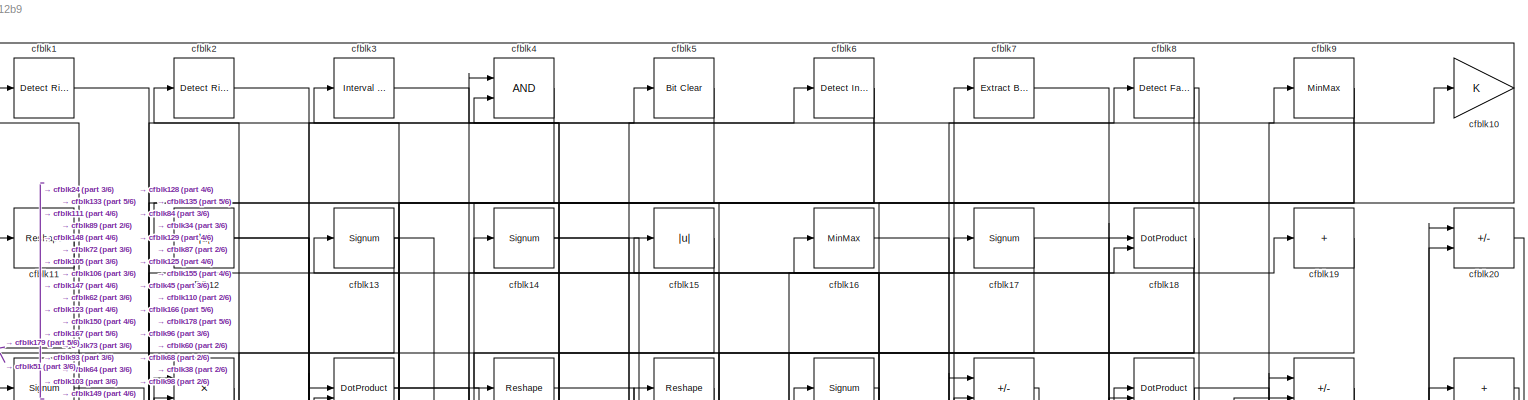
[diagram: root canvas - part 1/6, full width, top band]
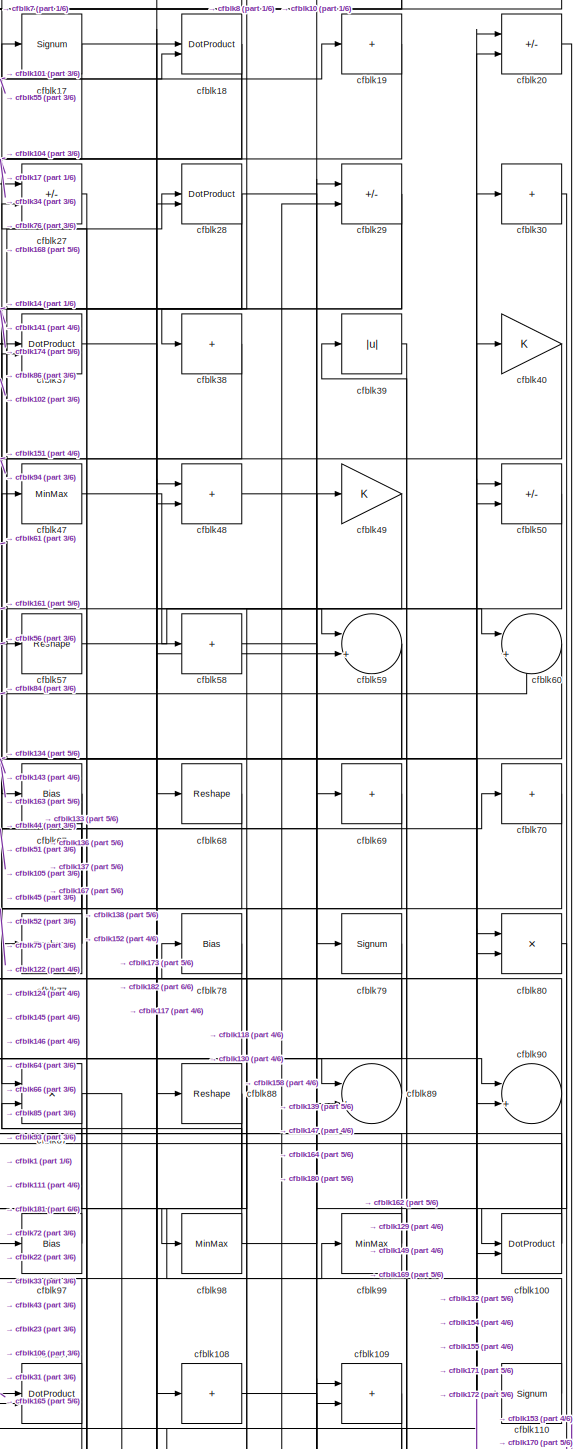
[diagram: root canvas - part 2/6, top right region]
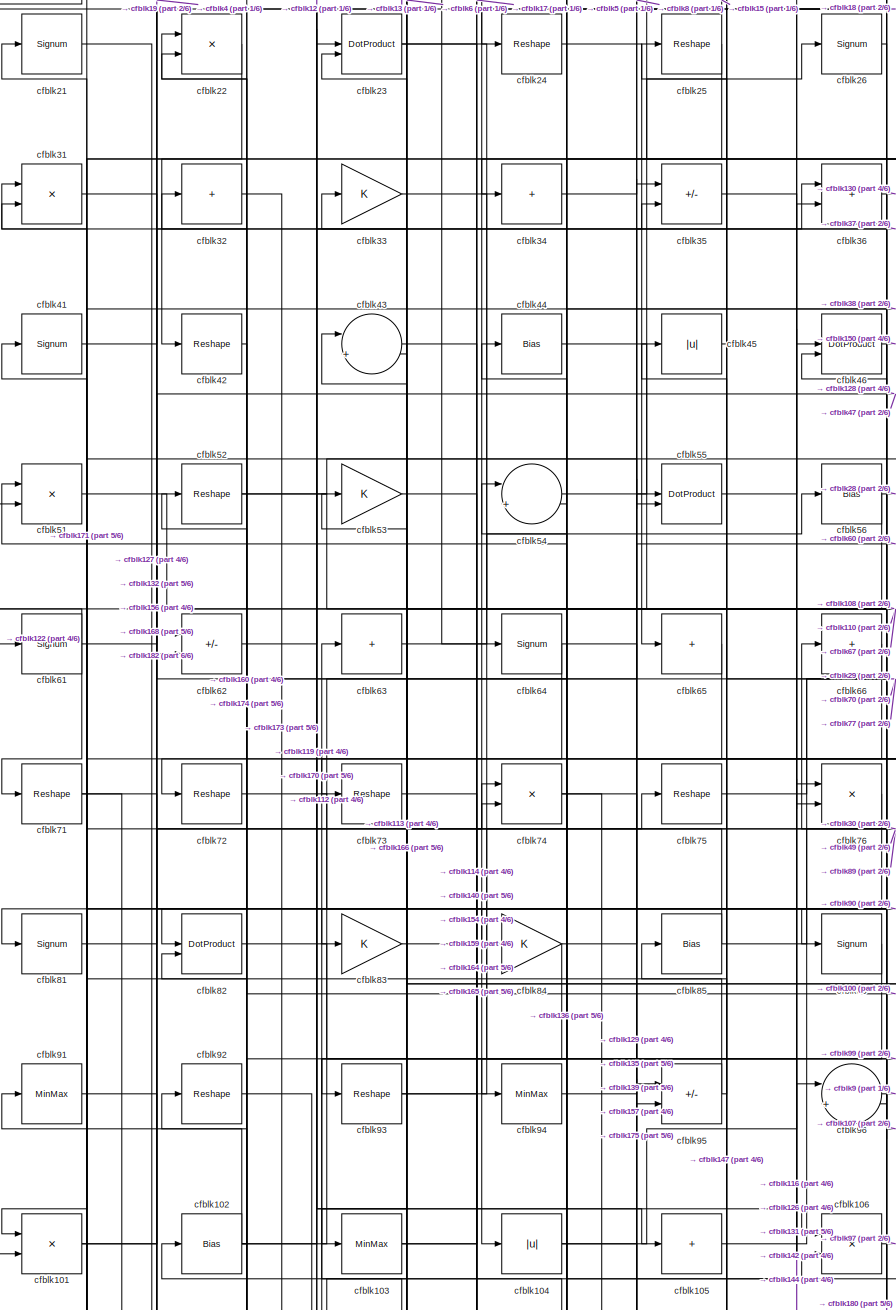
[diagram: root canvas - part 3/6, middle left region]
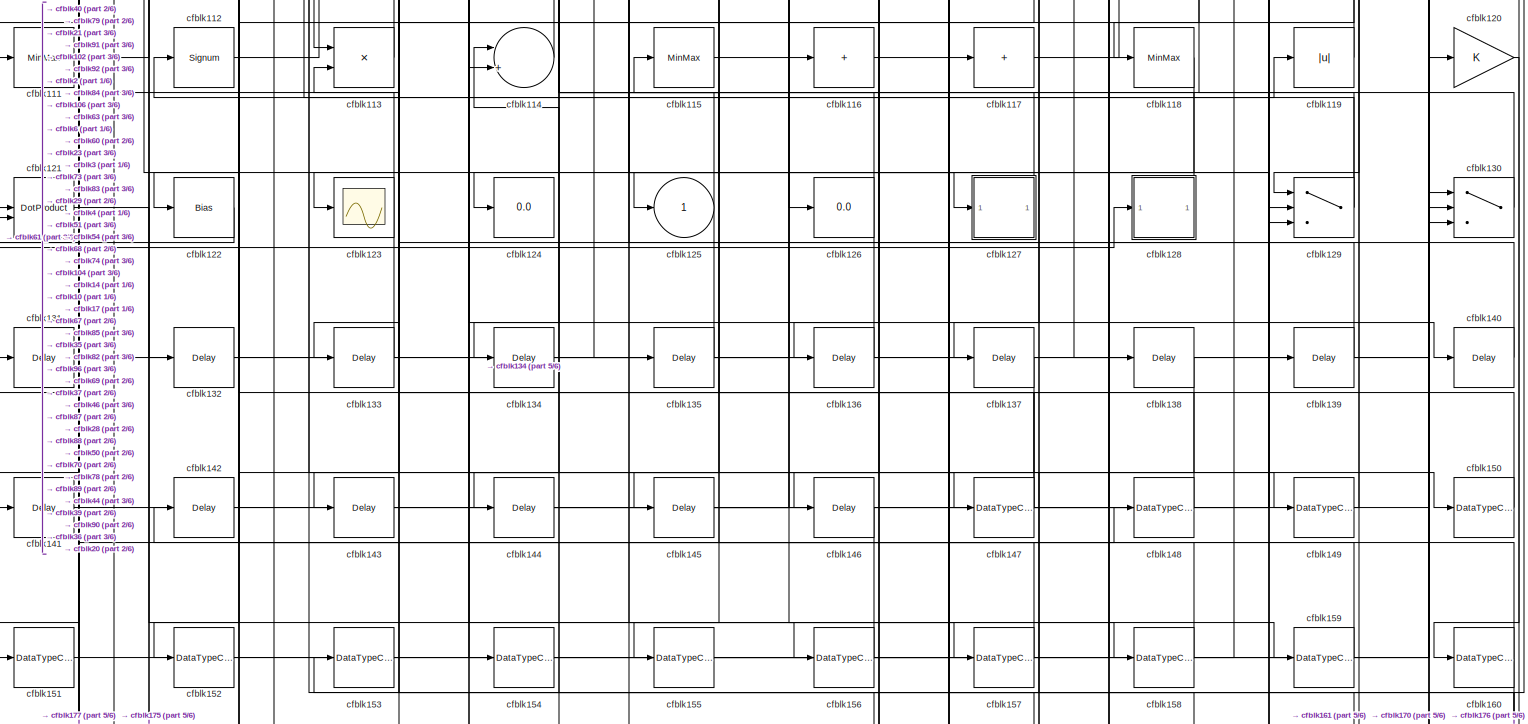
[diagram: root canvas - part 4/6, full width, bottom band]
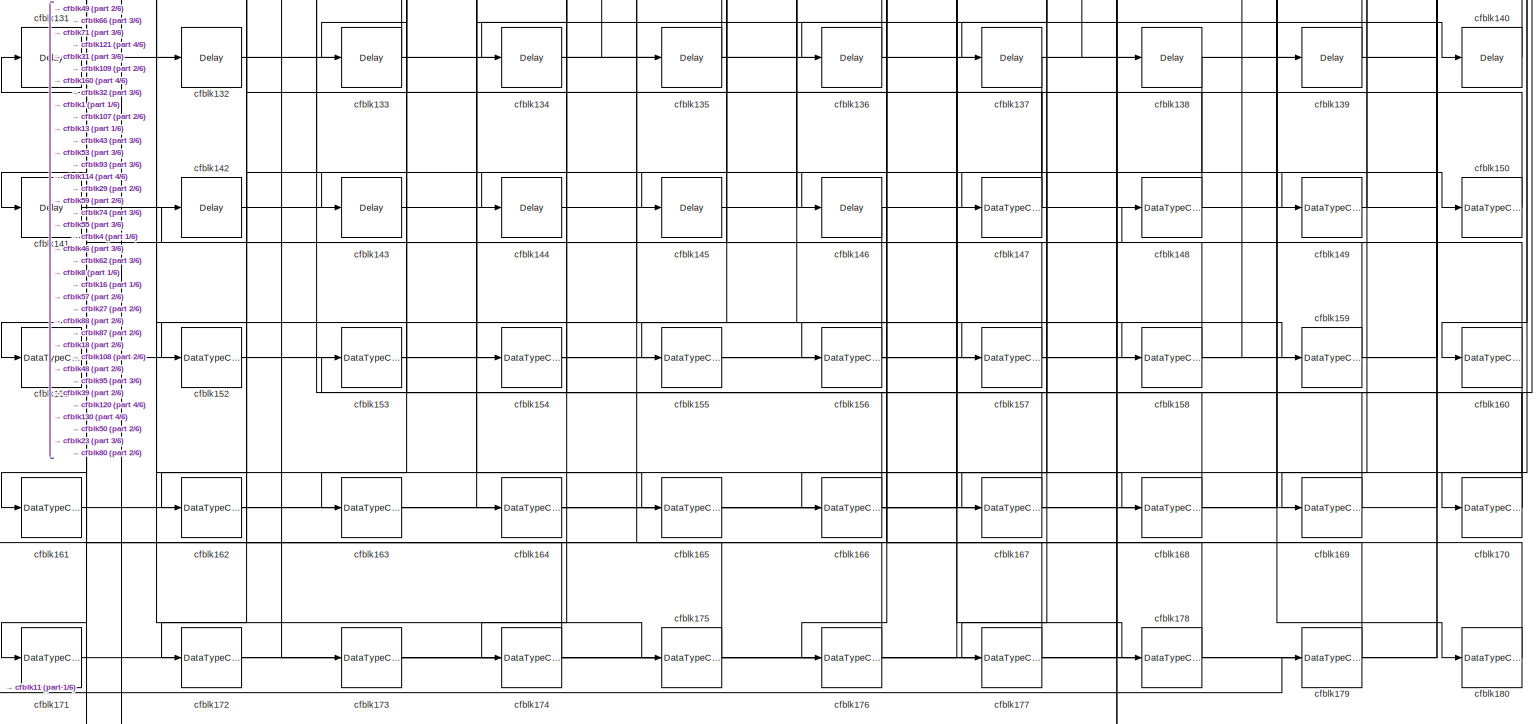
[diagram: root canvas - part 5/6, full width, bottom band]
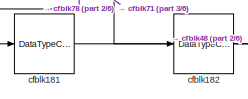
[diagram: root canvas - part 6/6, bottom left region]
MODEL slx_7438678712b9
KIND model
CONFIG AbsTol = auto
CONFIG EnableMultiTasking = off
CONFIG FixedStep = auto
CONFIG MaxStep = auto
CONFIG MinStep = auto
CONFIG RelTol = 1e-3
CONFIG SampleTimeConstraint = Unconstrained
CONFIG SolverName = VariableStepAuto
CONFIG StartTime = 0.0
CONFIG StopTime = 10.0
BLOCK [Reference] cfblk1  REF=hdlsllib/Logic and Bit
Operations/Detect Rise
Nonnegative
  SourceBlock = hdlsllib/Logic and Bit\nOperations/Detect Rise\nNonnegative
  SourceType = Detect Rise Nonnegative
BLOCK [Gain] cfblk10
BLOCK [DotProduct] cfblk100
  OutDataTypeStr = Inherit: Inherit via internal rule
BLOCK [Product] cfblk101
  Inputs = */
  RndMeth = Zero
  SaturateOnIntegerOverflow = on
BLOCK [Bias] cfblk102
  Bias = 0.0
  SaturateOnIntegerOverflow = off
BLOCK [MinMax] cfblk103
BLOCK [Abs] cfblk104
  SaturateOnIntegerOverflow = off
BLOCK [Sum] cfblk105
  IconShape = rectangular
  Inputs = +
BLOCK [Product] cfblk106
  Inputs = */
  RndMeth = Zero
  SaturateOnIntegerOverflow = on
BLOCK [DotProduct] cfblk107
  OutDataTypeStr = Inherit: Inherit via internal rule
BLOCK [Sum] cfblk108
  IconShape = rectangular
  Inputs = +
BLOCK [Sum] cfblk109
  IconShape = rectangular
BLOCK [Reshape] cfblk11
BLOCK [Signum] cfblk110
BLOCK [MinMax] cfblk111
BLOCK [Signum] cfblk112
BLOCK [Product] cfblk113
  Inputs = */
  RndMeth = Zero
  SaturateOnIntegerOverflow = on
BLOCK [Sum] cfblk114
  Inputs = |++
BLOCK [MinMax] cfblk115
BLOCK [Sum] cfblk116
  IconShape = rectangular
  Inputs = +
BLOCK [Sum] cfblk117
  IconShape = rectangular
  Inputs = +
BLOCK [MinMax] cfblk118
BLOCK [Abs] cfblk119
  SaturateOnIntegerOverflow = off
BLOCK [Abs] cfblk12
  SaturateOnIntegerOverflow = off
BLOCK [Gain] cfblk120
BLOCK [DotProduct] cfblk121
  OutDataTypeStr = Inherit: Inherit via internal rule
BLOCK [Bias] cfblk122
  Bias = 0.0
  SaturateOnIntegerOverflow = off
BLOCK [Scope] cfblk123
  Floating = off
  NumInputPorts = 1
  ScopeSpecificationString = Simulink.scopes.TimeScopeBlockCfg('CurrentConfiguration', extmgr.ConfigurationSet(extmgr.Configuration('Core','General UI',true),extmgr.Configuration('Core','Source UI',true),extmgr.Configuration('Sources','WiredSimulink',true,'DataLoggingVariableName','ScopeData2','DataLoggingSaveFormat','Array','DataLoggingLimitDataPoints',true,'DataLoggingDecimation','1'),extmgr.Configuration('Visuals','Time Do...<+868ch>
BLOCK [Display] cfblk124
  Decimation = 1
BLOCK [Outport] cfblk125
  VectorParamsAs1DForOutWhenUnconnected = off
BLOCK [Display] cfblk126
  Decimation = 1
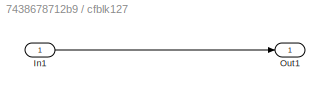
BLOCK [SubSystem] cfblk127
  LibrarySourceBlock = hdlsllib/Ports &\nSubsystems/Subsystem
BLOCK [Inport] cfblk127/In1
BLOCK [Outport] cfblk127/Out1
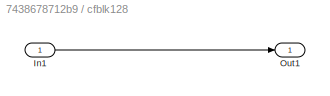
BLOCK [SubSystem] cfblk128
  LibrarySourceBlock = hdlsllib/Ports &\nSubsystems/Subsystem
BLOCK [Inport] cfblk128/In1
BLOCK [Outport] cfblk128/Out1
BLOCK [Switch] cfblk129
  InputSameDT = off
  SaturateOnIntegerOverflow = off
BLOCK [Signum] cfblk13
BLOCK [Switch] cfblk130
  InputSameDT = off
  SaturateOnIntegerOverflow = off
BLOCK [Delay] cfblk131
  InputPortMap = u0
  SampleTime = 1
BLOCK [Delay] cfblk132
  InputPortMap = u0
  SampleTime = 1
BLOCK [Delay] cfblk133
  InputPortMap = u0
  SampleTime = 1
BLOCK [Delay] cfblk134
  InputPortMap = u0
  SampleTime = 1
BLOCK [Delay] cfblk135
  InputPortMap = u0
  SampleTime = 1
BLOCK [Delay] cfblk136
  InputPortMap = u0
  SampleTime = 1
BLOCK [Delay] cfblk137
  InputPortMap = u0
  SampleTime = 1
BLOCK [Delay] cfblk138
  InputPortMap = u0
  SampleTime = 1
BLOCK [Delay] cfblk139
  InputPortMap = u0
  SampleTime = 1
BLOCK [Signum] cfblk14
BLOCK [Delay] cfblk140
  InputPortMap = u0
  SampleTime = 1
BLOCK [Delay] cfblk141
  InputPortMap = u0
  SampleTime = 1
BLOCK [Delay] cfblk142
  InputPortMap = u0
  SampleTime = 1
BLOCK [Delay] cfblk143
  InputPortMap = u0
  SampleTime = 1
BLOCK [Delay] cfblk144
  InputPortMap = u0
  SampleTime = 1
BLOCK [Delay] cfblk145
  InputPortMap = u0
  SampleTime = 1
BLOCK [Delay] cfblk146
  InputPortMap = u0
  SampleTime = 1
BLOCK [DataTypeConversion] cfblk147
  RndMeth = Floor
  SaturateOnIntegerOverflow = off
BLOCK [DataTypeConversion] cfblk148
  OutDataTypeStr = uint8
  RndMeth = Floor
  SaturateOnIntegerOverflow = off
BLOCK [DataTypeConversion] cfblk149
  OutDataTypeStr = uint8
  RndMeth = Floor
  SaturateOnIntegerOverflow = off
BLOCK [Abs] cfblk15
  SaturateOnIntegerOverflow = off
BLOCK [DataTypeConversion] cfblk150
  OutDataTypeStr = uint8
  RndMeth = Floor
  SaturateOnIntegerOverflow = off
BLOCK [DataTypeConversion] cfblk151
  OutDataTypeStr = uint8
  RndMeth = Floor
  SaturateOnIntegerOverflow = off
BLOCK [DataTypeConversion] cfblk152
  OutDataTypeStr = uint8
  RndMeth = Floor
  SaturateOnIntegerOverflow = off
BLOCK [DataTypeConversion] cfblk153
  OutDataTypeStr = uint8
  RndMeth = Floor
  SaturateOnIntegerOverflow = off
BLOCK [DataTypeConversion] cfblk154
  OutDataTypeStr = uint8
  RndMeth = Floor
  SaturateOnIntegerOverflow = off
BLOCK [DataTypeConversion] cfblk155
  OutDataTypeStr = uint8
  RndMeth = Floor
  SaturateOnIntegerOverflow = off
BLOCK [DataTypeConversion] cfblk156
  OutDataTypeStr = uint8
  RndMeth = Floor
  SaturateOnIntegerOverflow = off
BLOCK [DataTypeConversion] cfblk157
  OutDataTypeStr = uint8
  RndMeth = Floor
  SaturateOnIntegerOverflow = off
BLOCK [DataTypeConversion] cfblk158
  RndMeth = Floor
  SaturateOnIntegerOverflow = off
BLOCK [DataTypeConversion] cfblk159
  OutDataTypeStr = uint8
  RndMeth = Floor
  SaturateOnIntegerOverflow = off
BLOCK [MinMax] cfblk16
BLOCK [DataTypeConversion] cfblk160
  RndMeth = Floor
  SaturateOnIntegerOverflow = off
BLOCK [DataTypeConversion] cfblk161
  OutDataTypeStr = uint8
  RndMeth = Floor
  SaturateOnIntegerOverflow = off
BLOCK [DataTypeConversion] cfblk162
  OutDataTypeStr = uint8
  RndMeth = Floor
  SaturateOnIntegerOverflow = off
BLOCK [DataTypeConversion] cfblk163
  OutDataTypeStr = uint8
  RndMeth = Floor
  SaturateOnIntegerOverflow = off
BLOCK [DataTypeConversion] cfblk164
  OutDataTypeStr = uint8
  RndMeth = Floor
  SaturateOnIntegerOverflow = off
BLOCK [DataTypeConversion] cfblk165
  OutDataTypeStr = uint8
  RndMeth = Floor
  SaturateOnIntegerOverflow = off
BLOCK [DataTypeConversion] cfblk166
  OutDataTypeStr = uint8
  RndMeth = Floor
  SaturateOnIntegerOverflow = off
BLOCK [DataTypeConversion] cfblk167
  OutDataTypeStr = uint8
  RndMeth = Floor
  SaturateOnIntegerOverflow = off
BLOCK [DataTypeConversion] cfblk168
  OutDataTypeStr = uint8
  RndMeth = Floor
  SaturateOnIntegerOverflow = off
BLOCK [DataTypeConversion] cfblk169
  OutDataTypeStr = uint8
  RndMeth = Floor
  SaturateOnIntegerOverflow = off
BLOCK [Signum] cfblk17
BLOCK [DataTypeConversion] cfblk170
  RndMeth = Floor
  SaturateOnIntegerOverflow = off
BLOCK [DataTypeConversion] cfblk171
  OutDataTypeStr = uint8
  RndMeth = Floor
  SaturateOnIntegerOverflow = off
BLOCK [DataTypeConversion] cfblk172
  OutDataTypeStr = uint8
  RndMeth = Floor
  SaturateOnIntegerOverflow = off
BLOCK [DataTypeConversion] cfblk173
  RndMeth = Floor
  SaturateOnIntegerOverflow = off
BLOCK [DataTypeConversion] cfblk174
  OutDataTypeStr = uint8
  RndMeth = Floor
  SaturateOnIntegerOverflow = off
BLOCK [DataTypeConversion] cfblk175
  OutDataTypeStr = uint8
  RndMeth = Floor
  SaturateOnIntegerOverflow = off
BLOCK [DataTypeConversion] cfblk176
  OutDataTypeStr = uint8
  RndMeth = Floor
  SaturateOnIntegerOverflow = off
BLOCK [DataTypeConversion] cfblk177
  OutDataTypeStr = uint8
  RndMeth = Floor
  SaturateOnIntegerOverflow = off
BLOCK [DataTypeConversion] cfblk178
  OutDataTypeStr = uint8
  RndMeth = Floor
  SaturateOnIntegerOverflow = off
BLOCK [DataTypeConversion] cfblk179
  OutDataTypeStr = uint8
  RndMeth = Floor
  SaturateOnIntegerOverflow = off
BLOCK [DotProduct] cfblk18
  OutDataTypeStr = Inherit: Inherit via internal rule
BLOCK [DataTypeConversion] cfblk180
  OutDataTypeStr = uint8
  RndMeth = Floor
  SaturateOnIntegerOverflow = off
BLOCK [DataTypeConversion] cfblk181
  OutDataTypeStr = uint8
  RndMeth = Floor
  SaturateOnIntegerOverflow = off
BLOCK [DataTypeConversion] cfblk182
  OutDataTypeStr = uint8
  RndMeth = Floor
  SaturateOnIntegerOverflow = off
BLOCK [Sum] cfblk19
  IconShape = rectangular
  Inputs = +
BLOCK [Reference] cfblk2  REF=hdlsllib/Logic and Bit
Operations/Detect Rise
Nonnegative
  SourceBlock = hdlsllib/Logic and Bit\nOperations/Detect Rise\nNonnegative
  SourceType = Detect Rise Nonnegative
BLOCK [Sum] cfblk20
  IconShape = rectangular
  Inputs = +-
BLOCK [Signum] cfblk21
BLOCK [Product] cfblk22
  Inputs = */
  RndMeth = Zero
  SaturateOnIntegerOverflow = on
BLOCK [DotProduct] cfblk23
  OutDataTypeStr = Inherit: Inherit via internal rule
BLOCK [Reshape] cfblk24
BLOCK [Reshape] cfblk25
BLOCK [Signum] cfblk26
BLOCK [Sum] cfblk27
  IconShape = rectangular
  Inputs = +-
BLOCK [DotProduct] cfblk28
  OutDataTypeStr = Inherit: Inherit via internal rule
BLOCK [Sum] cfblk29
  IconShape = rectangular
  Inputs = +-
BLOCK [Reference] cfblk3  REF=hdlsllib/Logic and Bit
Operations/Interval Test
  SourceBlock = hdlsllib/Logic and Bit\nOperations/Interval Test
  SourceType = Interval Test
BLOCK [Sum] cfblk30
  IconShape = rectangular
  Inputs = +
BLOCK [Product] cfblk31
  Inputs = */
  RndMeth = Zero
  SaturateOnIntegerOverflow = on
BLOCK [Sum] cfblk32
  IconShape = rectangular
  Inputs = +
BLOCK [Gain] cfblk33
BLOCK [Sum] cfblk34
  IconShape = rectangular
  Inputs = +
BLOCK [Sum] cfblk35
  IconShape = rectangular
  Inputs = +-
BLOCK [Sum] cfblk36
  IconShape = rectangular
BLOCK [DotProduct] cfblk37
  OutDataTypeStr = Inherit: Inherit via internal rule
BLOCK [Sum] cfblk38
  IconShape = rectangular
  Inputs = +
BLOCK [Abs] cfblk39
  SaturateOnIntegerOverflow = off
BLOCK [Logic] cfblk4
  AllPortsSameDT = off
  OutDataTypeStr = boolean
BLOCK [Gain] cfblk40
BLOCK [Signum] cfblk41
BLOCK [Reshape] cfblk42
BLOCK [Sum] cfblk43
  Inputs = |++
BLOCK [Bias] cfblk44
  Bias = 0.0
  SaturateOnIntegerOverflow = off
BLOCK [Abs] cfblk45
  SaturateOnIntegerOverflow = off
BLOCK [DotProduct] cfblk46
  OutDataTypeStr = Inherit: Inherit via internal rule
BLOCK [MinMax] cfblk47
BLOCK [Sum] cfblk48
  IconShape = rectangular
BLOCK [Gain] cfblk49
BLOCK [Reference] cfblk5  REF=simulink/Logic and Bit
Operations/Bit Clear
  LibrarySourceBlock = hdlsllib/Logic and Bit\nOperations/Bit Clear
  SourceBlock = simulink/Logic and Bit\nOperations/Bit Clear
  SourceType = Bit Clear
BLOCK [Sum] cfblk50
  IconShape = rectangular
  Inputs = +-
BLOCK [Product] cfblk51
  Inputs = */
  RndMeth = Zero
  SaturateOnIntegerOverflow = on
BLOCK [Reshape] cfblk52
BLOCK [Gain] cfblk53
BLOCK [Sum] cfblk54
  Inputs = |++
BLOCK [DotProduct] cfblk55
  OutDataTypeStr = Inherit: Inherit via internal rule
BLOCK [Bias] cfblk56
  Bias = 0.0
  SaturateOnIntegerOverflow = off
BLOCK [Reshape] cfblk57
BLOCK [Sum] cfblk58
  IconShape = rectangular
  Inputs = +
BLOCK [Sum] cfblk59
  Inputs = |++
BLOCK [Reference] cfblk6  REF=simulink/Logic and Bit
Operations/Detect
Increase
  LibrarySourceBlock = hdlsllib/Logic and Bit\nOperations/Detect\nIncrease
  SourceBlock = simulink/Logic and Bit\nOperations/Detect\nIncrease
  SourceType = Detect Increase
BLOCK [Sum] cfblk60
  Inputs = |++
BLOCK [Signum] cfblk61
BLOCK [Sum] cfblk62
  IconShape = rectangular
  Inputs = +-
BLOCK [Sum] cfblk63
  IconShape = rectangular
  Inputs = +
BLOCK [Signum] cfblk64
BLOCK [Sum] cfblk65
  IconShape = rectangular
  Inputs = +
BLOCK [Sum] cfblk66
  IconShape = rectangular
  Inputs = +
BLOCK [Bias] cfblk67
  Bias = 0.0
  SaturateOnIntegerOverflow = off
BLOCK [Reshape] cfblk68
BLOCK [Sum] cfblk69
  IconShape = rectangular
  Inputs = +
BLOCK [Reference] cfblk7  REF=simulink/Logic and Bit
Operations/Extract Bits
  LibrarySourceBlock = hdlsllib/Logic and Bit\nOperations/Extract Bits
  SourceBlock = simulink/Logic and Bit\nOperations/Extract Bits
  SourceType = Extract Bits
BLOCK [Sum] cfblk70
  IconShape = rectangular
  Inputs = +
BLOCK [Reshape] cfblk71
BLOCK [Reshape] cfblk72
BLOCK [Reshape] cfblk73
BLOCK [Product] cfblk74
  Inputs = */
  RndMeth = Zero
  SaturateOnIntegerOverflow = on
BLOCK [Reshape] cfblk75
BLOCK [Product] cfblk76
  Inputs = */
  RndMeth = Zero
  SaturateOnIntegerOverflow = on
BLOCK [Reshape] cfblk77
BLOCK [Bias] cfblk78
  Bias = 0.0
  SaturateOnIntegerOverflow = off
BLOCK [Signum] cfblk79
BLOCK [Reference] cfblk8  REF=hdlsllib/Logic and Bit
Operations/Detect Fall
Nonpositive
  SourceBlock = hdlsllib/Logic and Bit\nOperations/Detect Fall\nNonpositive
  SourceType = Detect Fall Nonpositive
BLOCK [Product] cfblk80
  Inputs = */
  RndMeth = Zero
  SaturateOnIntegerOverflow = on
BLOCK [Signum] cfblk81
BLOCK [DotProduct] cfblk82
  OutDataTypeStr = Inherit: Inherit via internal rule
BLOCK [Gain] cfblk83
BLOCK [Gain] cfblk84
BLOCK [Bias] cfblk85
  Bias = 0.0
  SaturateOnIntegerOverflow = off
BLOCK [Signum] cfblk86
BLOCK [Product] cfblk87
  Inputs = */
  RndMeth = Zero
  SaturateOnIntegerOverflow = on
BLOCK [Reshape] cfblk88
BLOCK [Sum] cfblk89
  Inputs = |++
BLOCK [MinMax] cfblk9
BLOCK [Sum] cfblk90
  Inputs = |++
BLOCK [MinMax] cfblk91
BLOCK [Reshape] cfblk92
BLOCK [Reshape] cfblk93
BLOCK [MinMax] cfblk94
BLOCK [Sum] cfblk95
  IconShape = rectangular
  Inputs = +-
BLOCK [Sum] cfblk96
  Inputs = |++
BLOCK [Bias] cfblk97
  Bias = 0.0
  SaturateOnIntegerOverflow = off
BLOCK [MinMax] cfblk98
BLOCK [MinMax] cfblk99
NET cfblk100:1 -> cfblk22:2, cfblk43:1
NET cfblk101:1 -> cfblk19:1, cfblk74:2
NET cfblk102:1 -> cfblk22:1, cfblk31:2, cfblk35:1, cfblk37:2
NET cfblk103:1 -> cfblk17:1, cfblk75:1
NET cfblk104:1 -> cfblk157:1, cfblk76:1
LINE cfblk105:1 -> cfblk70:1
LINE cfblk106:1 -> cfblk97:1
NET cfblk107:1 -> cfblk133:1, cfblk31:1
LINE cfblk108:1 -> cfblk139:1
LINE cfblk109:1 -> cfblk162:1
NET cfblk10:1 -> cfblk11:1, cfblk155:1
LINE cfblk110:1 -> cfblk14:1
LINE cfblk111:1 -> cfblk6:1
LINE cfblk112:1 -> cfblk106:2
LINE cfblk113:1 -> cfblk63:1
LINE cfblk114:1 -> cfblk92:1
LINE cfblk115:1 -> cfblk158:1
LINE cfblk116:1 -> cfblk117:1
LINE cfblk117:1 -> cfblk50:1
LINE cfblk118:1 -> cfblk144:1
LINE cfblk119:1 -> cfblk44:1
LINE cfblk11:1 -> cfblk179:1
LINE cfblk120:1 -> cfblk160:1
LINE cfblk121:1 -> cfblk175:1
LINE cfblk122:1 -> cfblk61:1
LINE cfblk127/In1:1 -> cfblk127/Out1:1
LINE cfblk127:1 -> cfblk54:1
LINE cfblk128/In1:1 -> cfblk128/Out1:1
LINE cfblk128:1 -> cfblk4:2
NET cfblk129:1 -> cfblk112:1, cfblk51:1
NET cfblk12:1 -> cfblk105:1, cfblk106:1
LINE cfblk130:1 -> cfblk78:1
LINE cfblk131:1 -> cfblk46:1
LINE cfblk132:1 -> cfblk50:2
LINE cfblk133:1 -> cfblk1:1
LINE cfblk134:1 -> cfblk130:2
LINE cfblk135:1 -> cfblk4:1
LINE cfblk136:1 -> cfblk62:1
LINE cfblk137:1 -> cfblk172:1
LINE cfblk138:1 -> cfblk177:1
LINE cfblk139:1 -> cfblk95:1
NET cfblk13:1 -> cfblk51:2, cfblk64:1, cfblk93:1
LINE cfblk140:1 -> cfblk23:2
LINE cfblk141:1 -> cfblk130:3
LINE cfblk142:1 -> cfblk36:2
LINE cfblk143:1 -> cfblk28:2
LINE cfblk144:1 -> cfblk96:1
LINE cfblk145:1 -> cfblk89:2
LINE cfblk146:1 -> cfblk148:1
NET cfblk147:1 -> cfblk113:2, cfblk69:1, cfblk85:1
LINE cfblk148:1 -> cfblk2:1
LINE cfblk149:1 -> cfblk39:1
NET cfblk14:1 -> cfblk129:3, cfblk87:1
LINE cfblk150:1 -> cfblk3:1
LINE cfblk151:1 -> cfblk88:1
LINE cfblk152:1 -> cfblk40:1
LINE cfblk153:1 -> cfblk37:1
LINE cfblk154:1 -> cfblk20:1
LINE cfblk155:1 -> cfblk20:2
LINE cfblk156:1 -> cfblk102:1
LINE cfblk157:1 -> cfblk91:1
NET cfblk158:1 -> cfblk142:1, cfblk29:2
LINE cfblk159:1 -> cfblk115:1
LINE cfblk15:1 -> cfblk72:1
NET cfblk160:1 -> cfblk176:1, cfblk82:2
LINE cfblk161:1 -> cfblk120:1
LINE cfblk162:1 -> cfblk107:2
LINE cfblk163:1 -> cfblk109:1
LINE cfblk164:1 -> cfblk109:2
LINE cfblk165:1 -> cfblk107:1
LINE cfblk166:1 -> cfblk53:1
LINE cfblk167:1 -> cfblk13:1
LINE cfblk168:1 -> cfblk27:1
LINE cfblk169:1 -> cfblk27:2
LINE cfblk16:1 -> cfblk178:1
NET cfblk170:1 -> cfblk114:1, cfblk23:1
LINE cfblk171:1 -> cfblk80:1
LINE cfblk172:1 -> cfblk80:2
NET cfblk173:1 -> cfblk18:1, cfblk57:1
LINE cfblk174:1 -> cfblk32:1
LINE cfblk175:1 -> cfblk55:1
LINE cfblk176:1 -> cfblk121:1
LINE cfblk177:1 -> cfblk121:2
LINE cfblk178:1 -> cfblk131:1
LINE cfblk179:1 -> cfblk16:1
NET cfblk17:1 -> cfblk125:1, cfblk60:1
LINE cfblk180:1 -> cfblk46:2
LINE cfblk181:1 -> cfblk48:1
LINE cfblk182:1 -> cfblk48:2
NET cfblk18:1 -> cfblk104:1, cfblk76:2
LINE cfblk19:1 -> cfblk34:1
LINE cfblk1:1 -> cfblk89:1
LINE cfblk20:1 -> cfblk153:1
LINE cfblk21:1 -> cfblk127:1
LINE cfblk22:1 -> cfblk42:1
NET cfblk23:1 -> cfblk114:2, cfblk99:1
LINE cfblk24:1 -> cfblk65:1
LINE cfblk25:1 -> cfblk54:2
LINE cfblk26:1 -> cfblk96:2
LINE cfblk27:1 -> cfblk167:1
NET cfblk28:1 -> cfblk100:2, cfblk101:1, cfblk86:1
NET cfblk29:1 -> cfblk141:1, cfblk174:1
LINE cfblk2:1 -> cfblk147:1
LINE cfblk30:1 -> cfblk100:1
LINE cfblk31:1 -> cfblk132:1
LINE cfblk32:1 -> cfblk173:1
LINE cfblk33:1 -> cfblk67:1
LINE cfblk34:1 -> cfblk8:1
LINE cfblk35:1 -> cfblk126:1
LINE cfblk36:1 -> cfblk130:1
LINE cfblk37:1 -> cfblk59:2
LINE cfblk38:1 -> cfblk94:1
LINE cfblk39:1 -> cfblk169:1
LINE cfblk3:1 -> cfblk149:1
LINE cfblk40:1 -> cfblk151:1
LINE cfblk41:1 -> cfblk35:2
LINE cfblk42:1 -> cfblk82:1
LINE cfblk43:1 -> cfblk164:1
LINE cfblk44:1 -> cfblk110:1
LINE cfblk45:1 -> cfblk15:1
LINE cfblk46:1 -> cfblk150:1
LINE cfblk47:1 -> cfblk58:1
LINE cfblk48:1 -> cfblk180:1
LINE cfblk49:1 -> cfblk161:1
LINE cfblk4:1 -> cfblk62:2
LINE cfblk50:1 -> cfblk98:1
LINE cfblk51:1 -> cfblk108:1
NET cfblk52:1 -> cfblk55:2, cfblk90:2
LINE cfblk53:1 -> cfblk165:1
LINE cfblk54:1 -> cfblk26:1
LINE cfblk55:1 -> cfblk18:2
NET cfblk56:1 -> cfblk101:2, cfblk28:1
LINE cfblk57:1 -> cfblk59:1
LINE cfblk58:1 -> cfblk79:1
NET cfblk59:1 -> cfblk134:1, cfblk163:1
LINE cfblk5:1 -> cfblk24:1
LINE cfblk60:1 -> cfblk143:1
NET cfblk61:1 -> cfblk128:1, cfblk47:1, cfblk71:1
LINE cfblk62:1 -> cfblk5:1
LINE cfblk63:1 -> cfblk56:1
NET cfblk64:1 -> cfblk77:1, cfblk83:1
LINE cfblk65:1 -> cfblk95:2
LINE cfblk66:1 -> cfblk171:1
NET cfblk67:1 -> cfblk122:1, cfblk145:1
LINE cfblk68:1 -> cfblk124:1
LINE cfblk69:1 -> cfblk146:1
NET cfblk6:1 -> cfblk123:1, cfblk73:1
LINE cfblk70:1 -> cfblk118:1
NET cfblk71:1 -> cfblk168:1, cfblk182:1
LINE cfblk72:1 -> cfblk90:1
LINE cfblk73:1 -> cfblk154:1
NET cfblk74:1 -> cfblk129:2, cfblk135:1
LINE cfblk75:1 -> cfblk29:1
LINE cfblk76:1 -> cfblk81:1
NET cfblk77:1 -> cfblk45:1, cfblk52:1
LINE cfblk78:1 -> cfblk181:1
LINE cfblk79:1 -> cfblk111:1
LINE cfblk7:1 -> cfblk68:1
LINE cfblk80:1 -> cfblk170:1
LINE cfblk81:1 -> cfblk74:1
LINE cfblk82:1 -> cfblk116:1
LINE cfblk83:1 -> cfblk159:1
NET cfblk84:1 -> cfblk113:1, cfblk60:2
NET cfblk85:1 -> cfblk21:1, cfblk30:1
LINE cfblk86:1 -> cfblk103:1
NET cfblk87:1 -> cfblk138:1, cfblk152:1
NET cfblk88:1 -> cfblk136:1, cfblk137:1
LINE cfblk89:1 -> cfblk66:1
NET cfblk8:1 -> cfblk166:1, cfblk38:1
NET cfblk90:1 -> cfblk129:1, cfblk43:2
LINE cfblk91:1 -> cfblk156:1
LINE cfblk92:1 -> cfblk119:1
NET cfblk93:1 -> cfblk140:1, cfblk49:1
LINE cfblk94:1 -> cfblk36:1
NET cfblk95:1 -> cfblk25:1, cfblk41:1
LINE cfblk96:1 -> cfblk9:1
LINE cfblk97:1 -> cfblk87:2
NET cfblk98:1 -> cfblk10:1, cfblk7:1
LINE cfblk99:1 -> cfblk33:1
NET cfblk9:1 -> cfblk12:1, cfblk84:1
note: NET lines group one-source signal fan-out (src -> all destinations, sorted); 1:1 wires keep LINE
